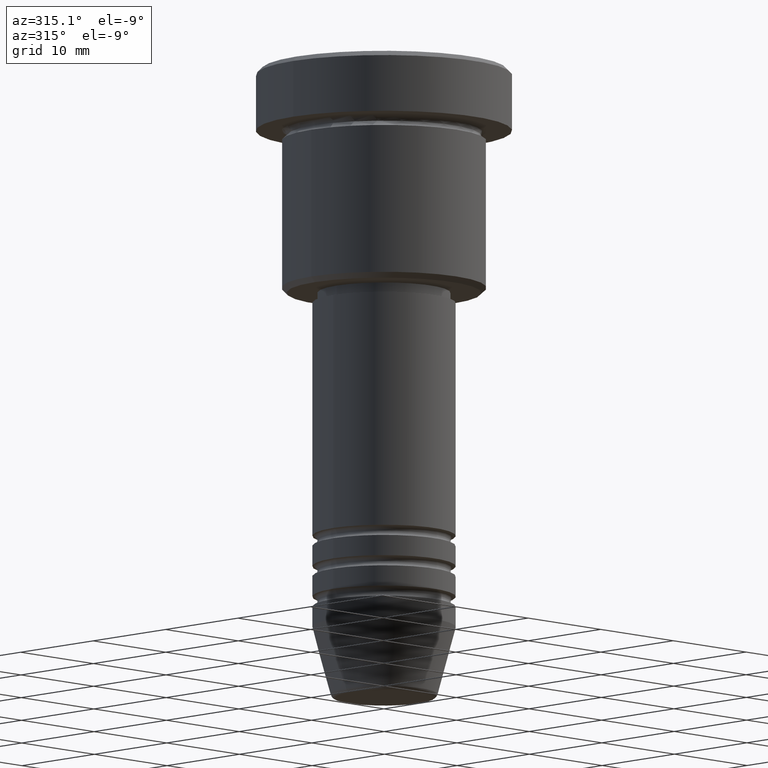
[diagram: clean part render]
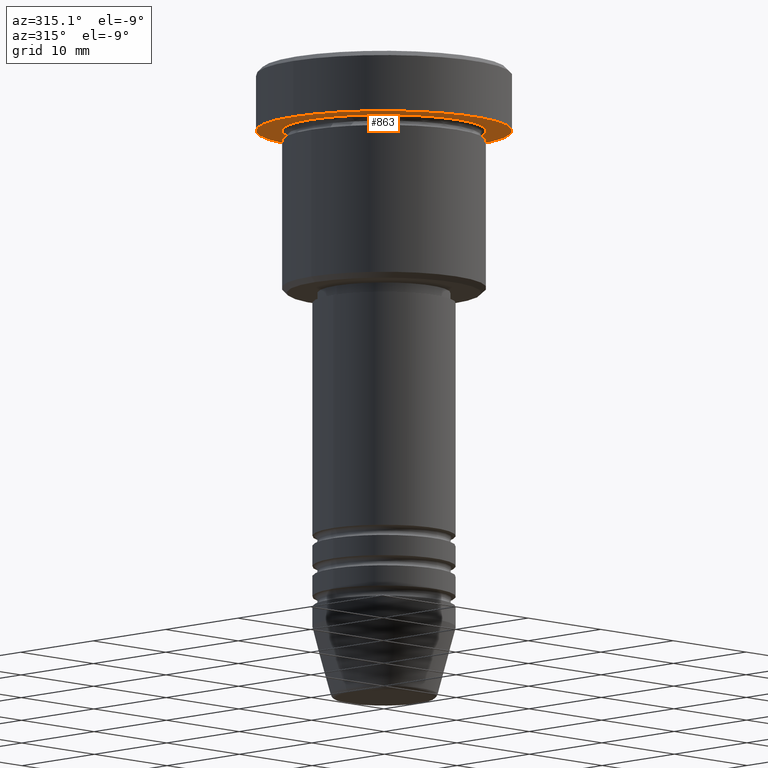
[diagram: same view with one face highlighted and labeled with its STEP entity id]
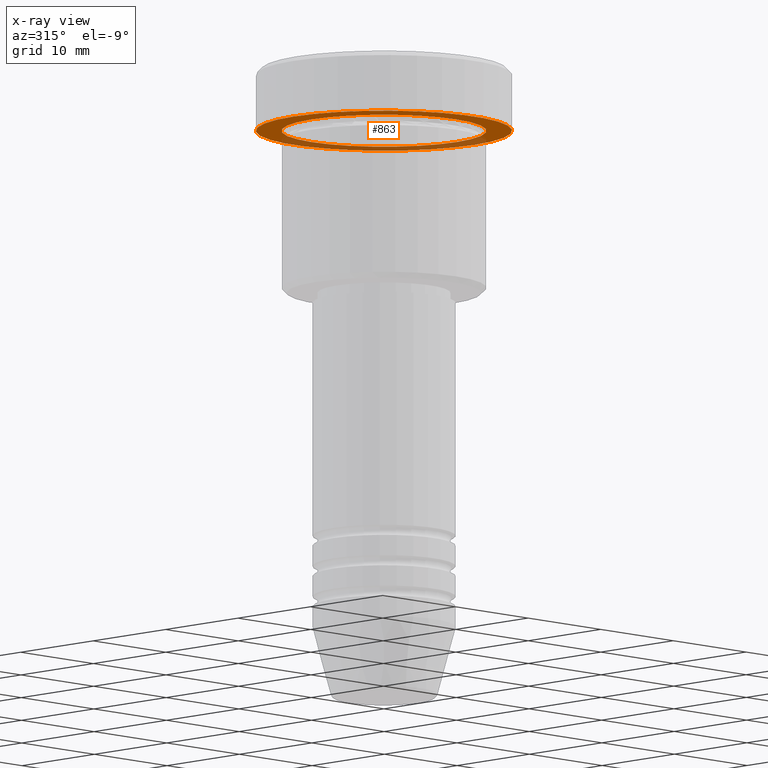
[diagram: x-ray of the same camera — body ghosted, the highlighted face saturated]
A machine part, auxiliary view. The second image highlights one B-rep face of the part: STEP entity #863.
The next image is the same camera in x-ray: the body ghosted, the highlighted face saturated — about 34% of this face is hidden behind the body in this view.
In plain terms, the highlighted planar face has unit normal (0, 0, -1).
Its self-contained STEP definition (entity closure, byte-faithful):
#3 = AXIS2_PLACEMENT_3D ( 'NONE', #1127, #428, #1141 ) ;
#8 = ORIENTED_EDGE ( 'NONE', *, *, #959, .T. ) ;
#17 = VERTEX_POINT ( 'NONE', #1078 ) ;
#41 = DIRECTION ( 'NONE',  ( -0.000000000000000000, -0.000000000000000000, 1.000000000000000000 ) ) ;
#76 = CIRCLE ( 'NONE', #663, 12.50000000000000000 ) ;
#108 = DIRECTION ( 'NONE',  ( 1.000000000000000000, 0.000000000000000000, 0.000000000000000000 ) ) ;
#128 = AXIS2_PLACEMENT_3D ( 'NONE', #699, #950, #758 ) ;
#142 = CARTESIAN_POINT ( 'NONE',  ( -12.50000000000000000, 1.530808498934191521E-15, -5.999999999999996447 ) ) ;
#208 = DIRECTION ( 'NONE',  ( -0.000000000000000000, -0.000000000000000000, 1.000000000000000000 ) ) ;
#213 = CIRCLE ( 'NONE', #3, 10.00000000000000000 ) ;
#224 = CARTESIAN_POINT ( 'NONE',  ( 0.000000000000000000, 0.000000000000000000, -5.999999999999996447 ) ) ;
#245 = CARTESIAN_POINT ( 'NONE',  ( 0.000000000000000000, 12.50000000000000000, -5.999999999999996447 ) ) ;
#259 = VERTEX_POINT ( 'NONE', #548 ) ;
#276 = EDGE_LOOP ( 'NONE', ( #1109, #861 ) ) ;
#287 = AXIS2_PLACEMENT_3D ( 'NONE', #224, #41, #581 ) ;
#342 = PLANE ( 'NONE',  #452 ) ;
#384 = EDGE_CURVE ( 'NONE', #259, #17, #213, .T. ) ;
#428 = DIRECTION ( 'NONE',  ( -0.000000000000000000, -0.000000000000000000, 1.000000000000000000 ) ) ;
#435 = VERTEX_POINT ( 'NONE', #436 ) ;
#436 = CARTESIAN_POINT ( 'NONE',  ( 12.50000000000000000, 0.000000000000000000, -5.999999999999996447 ) ) ;
#452 = AXIS2_PLACEMENT_3D ( 'NONE', #245, #508, #590 ) ;
#508 = DIRECTION ( 'NONE',  ( 0.000000000000000000, 0.000000000000000000, -1.000000000000000000 ) ) ;
#548 = CARTESIAN_POINT ( 'NONE',  ( -10.00000000000000000, 0.000000000000000000, -5.999999999999996447 ) ) ;
#581 = DIRECTION ( 'NONE',  ( -1.000000000000000000, 0.000000000000000000, 0.000000000000000000 ) ) ;
#590 = DIRECTION ( 'NONE',  ( -1.000000000000000000, 0.000000000000000000, -0.000000000000000000 ) ) ;
#639 = ORIENTED_EDGE ( 'NONE', *, *, #384, .T. ) ;
#663 = AXIS2_PLACEMENT_3D ( 'NONE', #1021, #208, #108 ) ;
#699 = CARTESIAN_POINT ( 'NONE',  ( 0.000000000000000000, 0.000000000000000000, -5.999999999999996447 ) ) ;
#758 = DIRECTION ( 'NONE',  ( 1.000000000000000000, 0.000000000000000000, 0.000000000000000000 ) ) ;
#861 = ORIENTED_EDGE ( 'NONE', *, *, #918, .F. ) ;
#863 = ADVANCED_FACE ( 'NONE', ( #1152, #958 ), #342, .T. ) ;
#900 = EDGE_LOOP ( 'NONE', ( #639, #8 ) ) ;
#918 = EDGE_CURVE ( 'NONE', #960, #435, #970, .T. ) ;
#950 = DIRECTION ( 'NONE',  ( -0.000000000000000000, -0.000000000000000000, 1.000000000000000000 ) ) ;
#958 = FACE_OUTER_BOUND ( 'NONE', #276, .T. ) ;
#959 = EDGE_CURVE ( 'NONE', #17, #259, #1006, .T. ) ;
#960 = VERTEX_POINT ( 'NONE', #142 ) ;
#970 = CIRCLE ( 'NONE', #128, 12.50000000000000000 ) ;
#1006 = CIRCLE ( 'NONE', #287, 10.00000000000000000 ) ;
#1021 = CARTESIAN_POINT ( 'NONE',  ( 0.000000000000000000, 0.000000000000000000, -5.999999999999996447 ) ) ;
#1078 = CARTESIAN_POINT ( 'NONE',  ( 10.00000000000000000, 1.224646799147353256E-15, -5.999999999999996447 ) ) ;
#1109 = ORIENTED_EDGE ( 'NONE', *, *, #1154, .F. ) ;
#1127 = CARTESIAN_POINT ( 'NONE',  ( 0.000000000000000000, 0.000000000000000000, -5.999999999999996447 ) ) ;
#1141 = DIRECTION ( 'NONE',  ( -1.000000000000000000, 0.000000000000000000, 0.000000000000000000 ) ) ;
#1152 = FACE_BOUND ( 'NONE', #900, .T. ) ;
#1154 = EDGE_CURVE ( 'NONE', #435, #960, #76, .T. ) ;